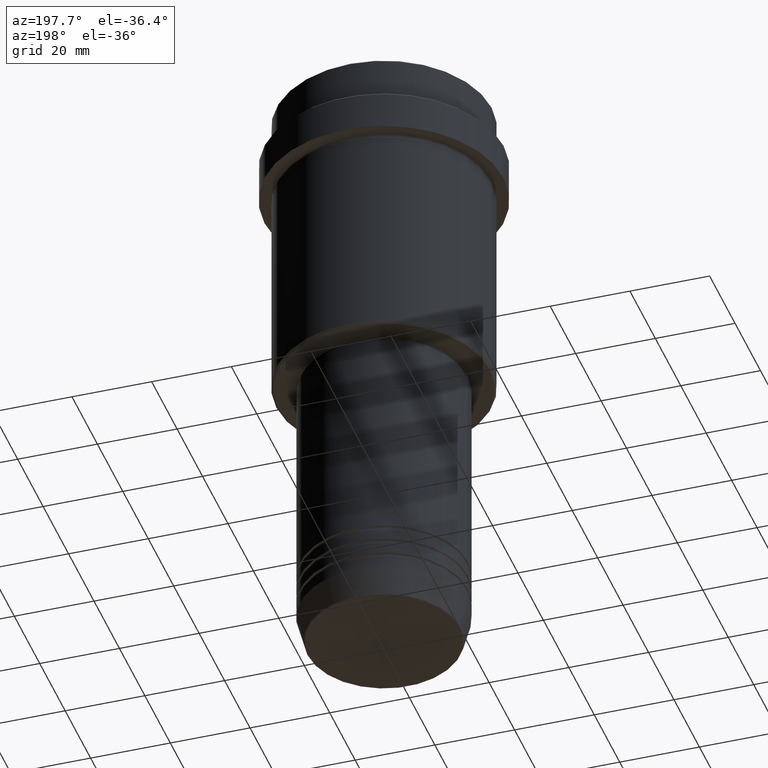
[diagram: clean part render]
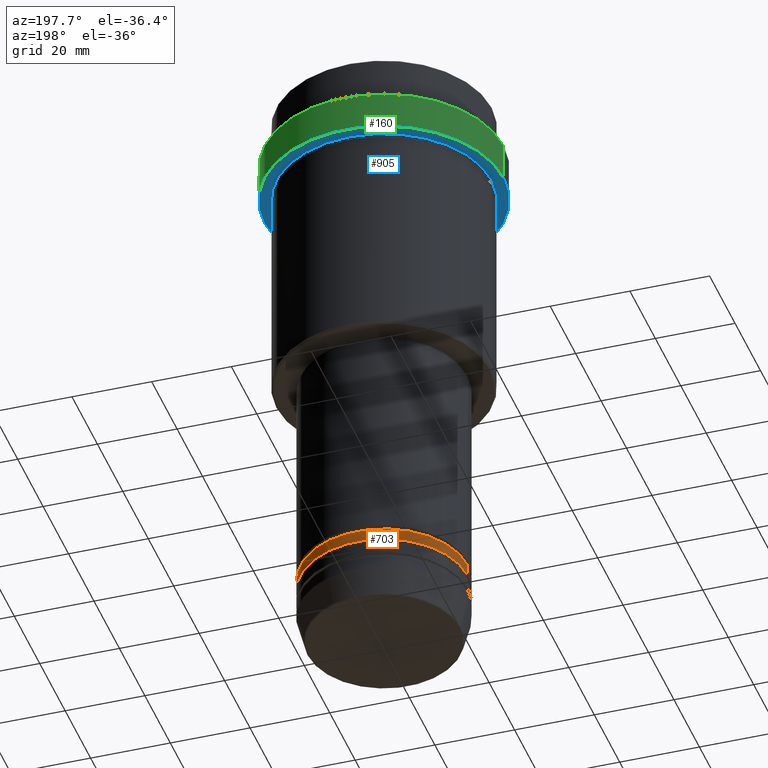
[diagram: same view with three faces highlighted in distinct colors, each labeled with its STEP entity id]
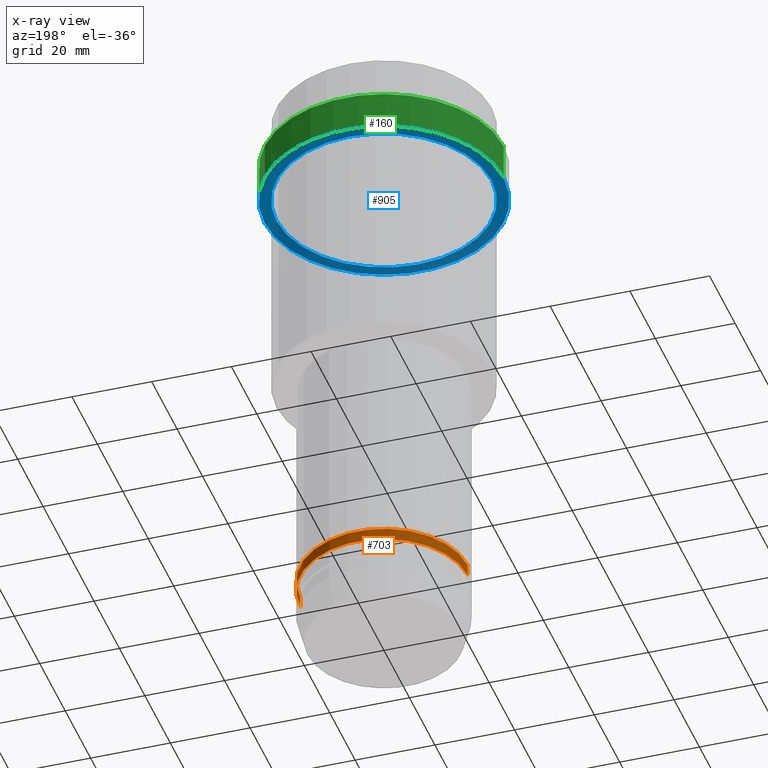
[diagram: x-ray of the same camera — body ghosted, the three highlighted faces saturated]
A machine part, auxiliary view with three faces highlighted in distinct colors.
The next image is the same camera in x-ray (body ghosted, the three faces saturated) — at least one of them is partly hidden behind the body in this view.
Their STEP definitions:

[orange] entity #703 — the highlighted cylindrical surface (partial cylindrical patch) has radius 21 mm, axis along (-0, -0, 1).
#37 = VECTOR ( 'NONE', #945, 1000.000000000000000 ) ;
#124 = CIRCLE ( 'NONE', #486, 21.00000000000000000 ) ;
#151 = CARTESIAN_POINT ( 'NONE',  ( 0.000000000000000000, 0.000000000000000000, 0.000000000000000000 ) ) ;
#242 = VERTEX_POINT ( 'NONE', #1021 ) ;
#256 = CARTESIAN_POINT ( 'NONE',  ( 21.00000000000000000, 0.000000000000000000, -134.9999999999998863 ) ) ;
#268 = VERTEX_POINT ( 'NONE', #256 ) ;
#334 = EDGE_CURVE ( 'NONE', #242, #1142, #1012, .T. ) ;
#360 = DIRECTION ( 'NONE',  ( -0.000000000000000000, -0.000000000000000000, 1.000000000000000000 ) ) ;
#361 = CARTESIAN_POINT ( 'NONE',  ( -21.00000000000000000, 2.571758278209441661E-15, 0.000000000000000000 ) ) ;
#363 = DIRECTION ( 'NONE',  ( 1.000000000000000000, 0.000000000000000000, 0.000000000000000000 ) ) ;
#486 = AXIS2_PLACEMENT_3D ( 'NONE', #633, #641, #1078 ) ;
#565 = CARTESIAN_POINT ( 'NONE',  ( 21.00000000000000000, 0.000000000000000000, 0.000000000000000000 ) ) ;
#567 = EDGE_LOOP ( 'NONE', ( #1059, #1237, #1370, #1068 ) ) ;
#633 = CARTESIAN_POINT ( 'NONE',  ( 0.000000000000000000, 0.000000000000000000, -137.9999999999998863 ) ) ;
#641 = DIRECTION ( 'NONE',  ( -0.000000000000000000, -0.000000000000000000, 1.000000000000000000 ) ) ;
#654 = CARTESIAN_POINT ( 'NONE',  ( 21.00000000000000000, 0.000000000000000000, -137.9999999999998863 ) ) ;
#660 = EDGE_CURVE ( 'NONE', #268, #1142, #1315, .T. ) ;
#692 = DIRECTION ( 'NONE',  ( -0.000000000000000000, -0.000000000000000000, 1.000000000000000000 ) ) ;
#703 = ADVANCED_FACE ( 'NONE', ( #1238 ), #1349, .T. ) ;
#747 = EDGE_CURVE ( 'NONE', #926, #268, #1342, .T. ) ;
#793 = CARTESIAN_POINT ( 'NONE',  ( 0.000000000000000000, 0.000000000000000000, -134.9999999999998863 ) ) ;
#846 = AXIS2_PLACEMENT_3D ( 'NONE', #151, #1023, #363 ) ;
#899 = VECTOR ( 'NONE', #360, 1000.000000000000000 ) ;
#926 = VERTEX_POINT ( 'NONE', #654 ) ;
#945 = DIRECTION ( 'NONE',  ( -0.000000000000000000, -0.000000000000000000, 1.000000000000000000 ) ) ;
#946 = EDGE_CURVE ( 'NONE', #926, #242, #124, .T. ) ;
#998 = CARTESIAN_POINT ( 'NONE',  ( -21.00000000000000000, 2.571758278209441661E-15, -134.9999999999998863 ) ) ;
#1012 = LINE ( 'NONE', #361, #37 ) ;
#1018 = DIRECTION ( 'NONE',  ( 1.000000000000000000, 0.000000000000000000, 0.000000000000000000 ) ) ;
#1021 = CARTESIAN_POINT ( 'NONE',  ( -21.00000000000000000, 2.571758278209441661E-15, -137.9999999999998863 ) ) ;
#1023 = DIRECTION ( 'NONE',  ( -0.000000000000000000, -0.000000000000000000, 1.000000000000000000 ) ) ;
#1059 = ORIENTED_EDGE ( 'NONE', *, *, #946, .T. ) ;
#1068 = ORIENTED_EDGE ( 'NONE', *, *, #747, .F. ) ;
#1078 = DIRECTION ( 'NONE',  ( 1.000000000000000000, 0.000000000000000000, 0.000000000000000000 ) ) ;
#1142 = VERTEX_POINT ( 'NONE', #998 ) ;
#1237 = ORIENTED_EDGE ( 'NONE', *, *, #334, .T. ) ;
#1238 = FACE_OUTER_BOUND ( 'NONE', #567, .T. ) ;
#1315 = CIRCLE ( 'NONE', #1360, 21.00000000000000000 ) ;
#1342 = LINE ( 'NONE', #565, #899 ) ;
#1349 = CYLINDRICAL_SURFACE ( 'NONE', #846, 21.00000000000000000 ) ;
#1360 = AXIS2_PLACEMENT_3D ( 'NONE', #793, #692, #1018 ) ;
#1370 = ORIENTED_EDGE ( 'NONE', *, *, #660, .F. ) ;

[blue] entity #905 — the highlighted planar face has unit normal (0, 0, -1).
#7 = FACE_OUTER_BOUND ( 'NONE', #1196, .T. ) ;
#23 = ORIENTED_EDGE ( 'NONE', *, *, #678, .F. ) ;
#58 = AXIS2_PLACEMENT_3D ( 'NONE', #1341, #488, #587 ) ;
#84 = ORIENTED_EDGE ( 'NONE', *, *, #1348, .F. ) ;
#121 = CIRCLE ( 'NONE', #684, 29.99999999999999645 ) ;
#131 = ORIENTED_EDGE ( 'NONE', *, *, #1050, .T. ) ;
#200 = DIRECTION ( 'NONE',  ( 0.000000000000000000, 0.000000000000000000, -1.000000000000000000 ) ) ;
#218 = ORIENTED_EDGE ( 'NONE', *, *, #223, .T. ) ;
#223 = EDGE_CURVE ( 'NONE', #414, #459, #1337, .T. ) ;
#238 = DIRECTION ( 'NONE',  ( 1.000000000000000000, 0.000000000000000000, 0.000000000000000000 ) ) ;
#262 = CIRCLE ( 'NONE', #58, 26.99999999999999289 ) ;
#264 = CARTESIAN_POINT ( 'NONE',  ( 0.000000000000000000, 0.000000000000000000, -22.00000000000000355 ) ) ;
#271 = CARTESIAN_POINT ( 'NONE',  ( 0.000000000000000000, 0.000000000000000000, -22.00000000000000000 ) ) ;
#369 = DIRECTION ( 'NONE',  ( 1.000000000000000000, 0.000000000000000000, 0.000000000000000000 ) ) ;
#403 = CARTESIAN_POINT ( 'NONE',  ( 29.99999999999999645, 0.000000000000000000, -22.00000000000000355 ) ) ;
#414 = VERTEX_POINT ( 'NONE', #1146 ) ;
#421 = CIRCLE ( 'NONE', #597, 29.99999999999999645 ) ;
#455 = DIRECTION ( 'NONE',  ( -0.000000000000000000, -0.000000000000000000, 1.000000000000000000 ) ) ;
#459 = VERTEX_POINT ( 'NONE', #1275 ) ;
#488 = DIRECTION ( 'NONE',  ( -0.000000000000000000, -0.000000000000000000, 1.000000000000000000 ) ) ;
#581 = DIRECTION ( 'NONE',  ( -1.000000000000000000, 0.000000000000000000, 0.000000000000000000 ) ) ;
#587 = DIRECTION ( 'NONE',  ( -1.000000000000000000, 0.000000000000000000, 0.000000000000000000 ) ) ;
#597 = AXIS2_PLACEMENT_3D ( 'NONE', #984, #775, #238 ) ;
#659 = CARTESIAN_POINT ( 'NONE',  ( -29.99999999999999645, 3.673940397442058389E-15, -22.00000000000000355 ) ) ;
#678 = EDGE_CURVE ( 'NONE', #1206, #1346, #121, .T. ) ;
#684 = AXIS2_PLACEMENT_3D ( 'NONE', #264, #455, #369 ) ;
#775 = DIRECTION ( 'NONE',  ( -0.000000000000000000, -0.000000000000000000, 1.000000000000000000 ) ) ;
#905 = ADVANCED_FACE ( 'NONE', ( #1402, #7 ), #1089, .T. ) ;
#959 = EDGE_LOOP ( 'NONE', ( #131, #218 ) ) ;
#984 = CARTESIAN_POINT ( 'NONE',  ( 0.000000000000000000, 0.000000000000000000, -22.00000000000000355 ) ) ;
#987 = CARTESIAN_POINT ( 'NONE',  ( 0.000000000000000000, 29.99999999999999645, -22.00000000000000000 ) ) ;
#1035 = AXIS2_PLACEMENT_3D ( 'NONE', #271, #1113, #581 ) ;
#1050 = EDGE_CURVE ( 'NONE', #459, #414, #262, .T. ) ;
#1089 = PLANE ( 'NONE',  #1383 ) ;
#1095 = DIRECTION ( 'NONE',  ( -1.000000000000000000, 0.000000000000000000, -0.000000000000000000 ) ) ;
#1113 = DIRECTION ( 'NONE',  ( -0.000000000000000000, -0.000000000000000000, 1.000000000000000000 ) ) ;
#1146 = CARTESIAN_POINT ( 'NONE',  ( 26.99999999999999289, 3.306546357697852944E-15, -22.00000000000000000 ) ) ;
#1196 = EDGE_LOOP ( 'NONE', ( #23, #84 ) ) ;
#1206 = VERTEX_POINT ( 'NONE', #403 ) ;
#1275 = CARTESIAN_POINT ( 'NONE',  ( -26.99999999999999289, 0.000000000000000000, -22.00000000000000000 ) ) ;
#1337 = CIRCLE ( 'NONE', #1035, 26.99999999999999289 ) ;
#1341 = CARTESIAN_POINT ( 'NONE',  ( 0.000000000000000000, 0.000000000000000000, -22.00000000000000000 ) ) ;
#1346 = VERTEX_POINT ( 'NONE', #659 ) ;
#1348 = EDGE_CURVE ( 'NONE', #1346, #1206, #421, .T. ) ;
#1383 = AXIS2_PLACEMENT_3D ( 'NONE', #987, #200, #1095 ) ;
#1402 = FACE_BOUND ( 'NONE', #959, .T. ) ;

[green] entity #160 — the highlighted cylindrical surface (partial cylindrical patch) has radius 30 mm, axis along (-0, -0, 1).
#29 = CARTESIAN_POINT ( 'NONE',  ( 0.000000000000000000, 0.000000000000000000, 0.000000000000000000 ) ) ;
#99 = CARTESIAN_POINT ( 'NONE',  ( 0.000000000000000000, 0.000000000000000000, -12.50000000000002309 ) ) ;
#110 = VERTEX_POINT ( 'NONE', #879 ) ;
#121 = CIRCLE ( 'NONE', #684, 29.99999999999999645 ) ;
#144 = CYLINDRICAL_SURFACE ( 'NONE', #1128, 30.00000000000000000 ) ;
#147 = VECTOR ( 'NONE', #1138, 1000.000000000000000 ) ;
#160 = ADVANCED_FACE ( 'NONE', ( #540 ), #144, .T. ) ;
#173 = EDGE_LOOP ( 'NONE', ( #701, #910, #434, #978 ) ) ;
#249 = LINE ( 'NONE', #908, #147 ) ;
#251 = VERTEX_POINT ( 'NONE', #1125 ) ;
#264 = CARTESIAN_POINT ( 'NONE',  ( 0.000000000000000000, 0.000000000000000000, -22.00000000000000355 ) ) ;
#369 = DIRECTION ( 'NONE',  ( 1.000000000000000000, 0.000000000000000000, 0.000000000000000000 ) ) ;
#403 = CARTESIAN_POINT ( 'NONE',  ( 29.99999999999999645, 0.000000000000000000, -22.00000000000000355 ) ) ;
#434 = ORIENTED_EDGE ( 'NONE', *, *, #596, .T. ) ;
#455 = DIRECTION ( 'NONE',  ( -0.000000000000000000, -0.000000000000000000, 1.000000000000000000 ) ) ;
#533 = DIRECTION ( 'NONE',  ( 1.000000000000000000, 0.000000000000000000, 0.000000000000000000 ) ) ;
#540 = FACE_OUTER_BOUND ( 'NONE', #173, .T. ) ;
#560 = DIRECTION ( 'NONE',  ( -0.000000000000000000, -0.000000000000000000, 1.000000000000000000 ) ) ;
#592 = VECTOR ( 'NONE', #560, 1000.000000000000000 ) ;
#596 = EDGE_CURVE ( 'NONE', #251, #110, #1404, .T. ) ;
#642 = EDGE_CURVE ( 'NONE', #1346, #251, #249, .T. ) ;
#659 = CARTESIAN_POINT ( 'NONE',  ( -29.99999999999999645, 3.673940397442058389E-15, -22.00000000000000355 ) ) ;
#678 = EDGE_CURVE ( 'NONE', #1206, #1346, #121, .T. ) ;
#684 = AXIS2_PLACEMENT_3D ( 'NONE', #264, #455, #369 ) ;
#701 = ORIENTED_EDGE ( 'NONE', *, *, #678, .T. ) ;
#721 = EDGE_CURVE ( 'NONE', #1206, #110, #1329, .T. ) ;
#757 = DIRECTION ( 'NONE',  ( 0.000000000000000000, 0.000000000000000000, -1.000000000000000000 ) ) ;
#799 = DIRECTION ( 'NONE',  ( 1.000000000000000000, 0.000000000000000000, 0.000000000000000000 ) ) ;
#879 = CARTESIAN_POINT ( 'NONE',  ( 30.00000000000000000, 0.000000000000000000, -12.50000000000002309 ) ) ;
#908 = CARTESIAN_POINT ( 'NONE',  ( -30.00000000000000000, 3.673940397442059178E-15, 0.000000000000000000 ) ) ;
#910 = ORIENTED_EDGE ( 'NONE', *, *, #642, .T. ) ;
#969 = AXIS2_PLACEMENT_3D ( 'NONE', #99, #757, #533 ) ;
#978 = ORIENTED_EDGE ( 'NONE', *, *, #721, .F. ) ;
#1112 = CARTESIAN_POINT ( 'NONE',  ( 30.00000000000000000, 0.000000000000000000, 0.000000000000000000 ) ) ;
#1125 = CARTESIAN_POINT ( 'NONE',  ( -30.00000000000000000, 3.673940397442059178E-15, -12.50000000000002309 ) ) ;
#1128 = AXIS2_PLACEMENT_3D ( 'NONE', #29, #1239, #799 ) ;
#1138 = DIRECTION ( 'NONE',  ( -0.000000000000000000, -0.000000000000000000, 1.000000000000000000 ) ) ;
#1206 = VERTEX_POINT ( 'NONE', #403 ) ;
#1239 = DIRECTION ( 'NONE',  ( -0.000000000000000000, -0.000000000000000000, 1.000000000000000000 ) ) ;
#1329 = LINE ( 'NONE', #1112, #592 ) ;
#1346 = VERTEX_POINT ( 'NONE', #659 ) ;
#1404 = CIRCLE ( 'NONE', #969, 30.00000000000000000 ) ;